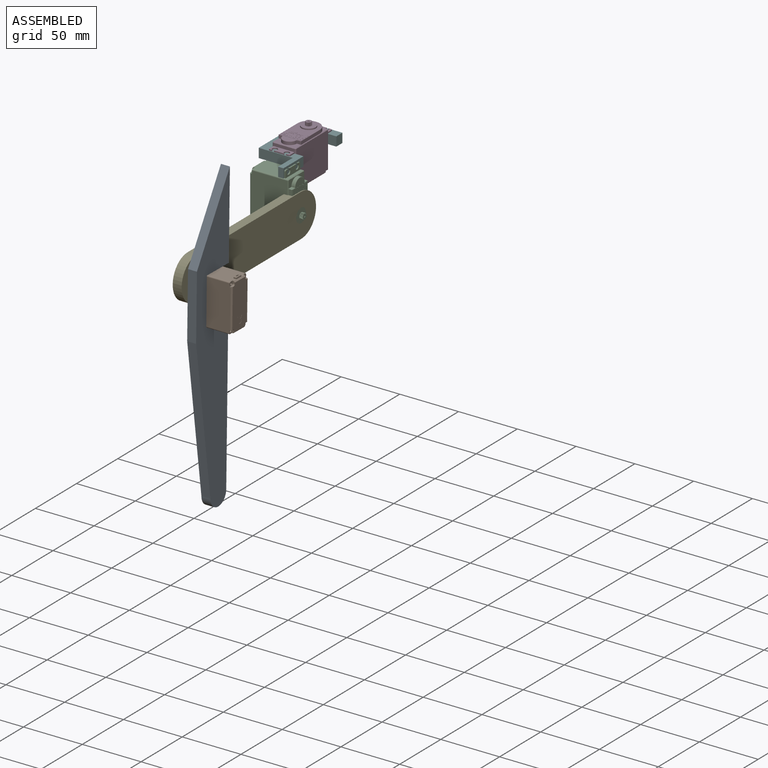
[diagram: assembled view]
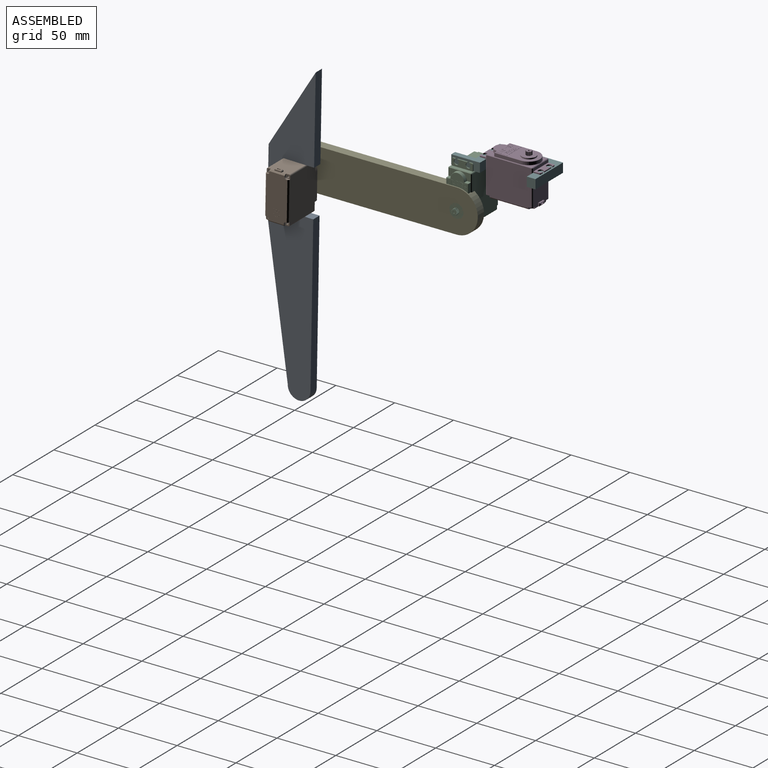
[diagram: assembled view, second angle]
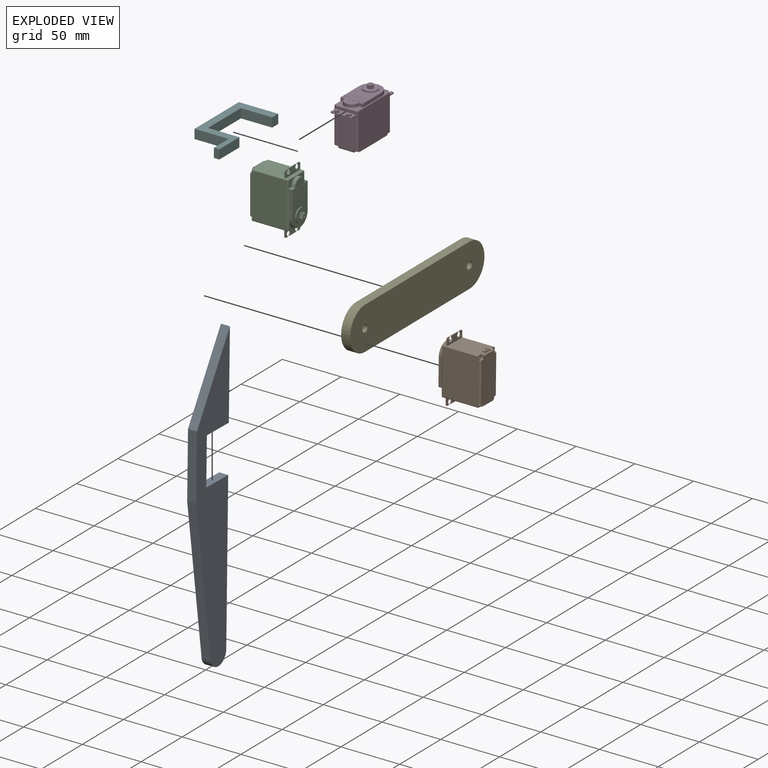
[diagram: exploded view]
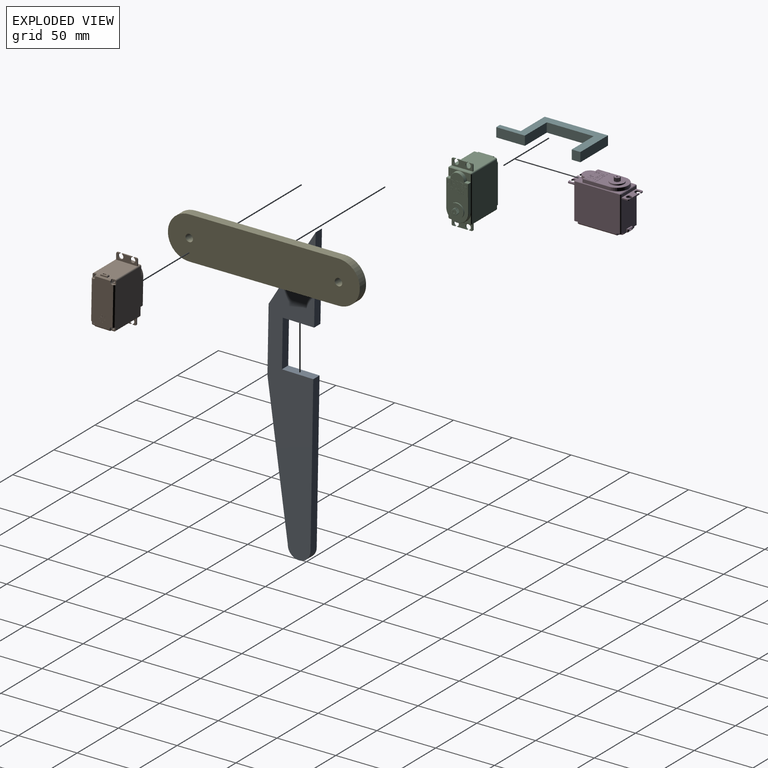
[diagram: exploded view, second angle]
ASSEMBLY  parts=6 mates=11
PART A: 11 faces, bbox 256.3x38.9x7.6 mm
  f0: plane 55.12x7.62mm, normal (0,-1,0), area 420mm2, adj f1,f8,f9,f10
  f1: plane 125.18x19.56mm, normal (0.15,-0.99,0), area 965.5mm2, adj f0,f2,f9,f10
  f2: cylinder r=9.65mm len=19.3mm, axis (0,0,-1), area 231.1mm2, adj f1,f3,f9,f10
  f3: plane 133.1x7.62mm, normal (0,1,0), area 1014.2mm2, adj f2,f4,f9,f10
  f4: plane 26.67x7.62mm, normal (-1,0,0), area 203.2mm2, adj f3,f5,f9,f10
  f5: plane 39.88x7.62mm, normal (0,1,0), area 303.9mm2, adj f4,f6,f9,f10
  f6: plane 26.67x7.62mm, normal (1,0,0), area 203.2mm2, adj f5,f7,f9,f10
  f7: plane 73.66x7.62mm, normal (0,1,0), area 561.3mm2, adj f6,f8,f9,f10
  f8: plane 66.33x38.86mm, normal (-0.51,-0.86,0), area 585.8mm2, adj f0,f7,f9,f10
  f9: plane 256.29x38.86mm, normal (0,0,1), area 6154.4mm2, adj f0,f1,f2,f3,f4,f5,f6,f7
  f10: plane 256.29x38.86mm, normal (0,0,-1), area 6154.4mm2, adj f0,f1,f2,f3,f4,f5,f6,f7
PART B: 353 faces, bbox 21.3x52.1x40.2 mm
  f0: plane 28x18mm, normal (0,1,0), area 484mm2, adj f8,f11,f26,f27,f30,f40,f42,f141
  f1: plane 38x18mm, normal (0,0,-1), area 652.9mm2, adj f23,f24,f25,f26,f27,f28,f29,f31
  f2: plane 18x10mm, normal (0,0,1), area 150.9mm2, adj f155,f156,f157,f158,f159,f160,f161,f162
  f3: plane 38x18.5mm, normal (0,0,1), area 317.1mm2, adj f43,f155,f156,f157,f158,f302,f308,f309
  f4: plane 28x18mm, normal (0,-1,0), area 499mm2, adj f9,f10,f23,f32,f34,f37,f38,f154
  f5: plane 7.31x7.31mm, normal (0,0,1), area 16.3mm2, adj f122,f124,f126,f295
  f6: plane 7.31x7.31mm, normal (0,0,1), area 16.3mm2, adj f126,f127,f128,f291
  f7: plane 12x12mm, normal (0,0,1), area 96.7mm2, adj f43,f44,f45,f46,f47,f48,f49,f50
  f8: cylinder r=1mm len=30.5mm, axis (0,0,-1), area 47.9mm2, adj f0,f14,f15,f42,f128,f137
  f9: cylinder r=1mm len=30.5mm, axis (0,0,-1), area 47.9mm2, adj f4,f15,f16,f38,f125,f151
  f10: cylinder r=1mm len=30.5mm, axis (0,0,-1), area 47.9mm2, adj f4,f13,f16,f34,f121,f150
  f11: cylinder r=1mm len=30.5mm, axis (0,0,-1), area 47.9mm2, adj f0,f13,f14,f30,f124,f138
  f12: plane 19x6.32mm, normal (0,0,1), area 60.4mm2, adj f121,f122,f123,f125,f127,f296,f298,f303
  f13: plane 38x31.5mm, normal (1,0,0), area 1192mm2, adj f10,f11,f24,f29,f30,f33,f34,f122
  f14: plane 18x2.5mm, normal (0,1,0), area 45mm2, adj f8,f11,f126,f140
  f15: plane 38x31.5mm, normal (-1,0,0), area 1192mm2, adj f8,f9,f25,f36,f38,f41,f42,f127
  f16: plane 18x2.5mm, normal (0,-1,0), area 45mm2, adj f9,f10,f123,f153
  f17: cylinder r=9.5mm len=19mm, axis (0,0,-1), area 75.4mm2, adj f18,f22,f290,f291,f292,f294,f295,f300
  f18: plane 22.75x2.65mm, normal (-1,0,0), area 60.2mm2, adj f17,f299,f310,f317
  f19: plane 3.01x2.5mm, normal (0,-1,0), area 7.5mm2, adj f297,f298,f309,f310
  f20: cylinder r=6mm len=11.99mm, axis (0,0,-1), area 45.9mm2, adj f296,f297,f307,f308
  f21: plane 3.01x2.5mm, normal (0,-1,0), area 7.5mm2, adj f306,f307,f315,f316
  f22: plane 22.75x2.65mm, normal (1,0,0), area 60.2mm2, adj f17,f305,f315,f320
  f23: plane 13x1mm, normal (0,-0.71,-0.71), area 18.4mm2, adj f1,f4,f32,f37
  f24: plane 33x1mm, normal (0.71,0,-0.71), area 46.7mm2, adj f1,f13,f29,f33
  f25: plane 33x1mm, normal (-0.71,0,-0.71), area 46.7mm2, adj f1,f15,f36,f41
  f26: plane 13x1mm, normal (0,0.71,-0.71), area 18.4mm2, adj f0,f1,f27,f40
  f27: plane 2x2mm, normal (1,0,0), area 3.5mm2, adj f0,f1,f26,f28,f30
  f28: cylinder r=1.5mm len=2mm, axis (0,0,-1), area 4.7mm2, adj f1,f27,f29,f30
  f29: plane 2x2mm, normal (0,1,0), area 3.5mm2, adj f1,f13,f24,f28,f30
  f30: plane 3.5x3.5mm, normal (0,0,-1), area 8.4mm2, adj f0,f11,f13,f27,f28,f29,f119
  f31: cylinder r=1.5mm len=2mm, axis (0,0,-1), area 4.7mm2, adj f1,f32,f33,f34
  f32: plane 2x2mm, normal (1,0,0), area 3.5mm2, adj f1,f4,f23,f31,f34
  f33: plane 2x2mm, normal (0,-1,0), area 3.5mm2, adj f1,f13,f24,f31,f34
  f34: plane 3.5x3.5mm, normal (0,0,-1), area 8.4mm2, adj f4,f10,f13,f31,f32,f33,f115
  f35: cylinder r=1.5mm len=2mm, axis (0,0,-1), area 4.7mm2, adj f1,f36,f37,f38
  f36: plane 2x2mm, normal (0,-1,0), area 3.5mm2, adj f1,f15,f25,f35,f38
  f37: plane 2x2mm, normal (-1,0,0), area 3.5mm2, adj f1,f4,f23,f35,f38
  f38: plane 3.5x3.5mm, normal (0,0,-1), area 8.4mm2, adj f4,f9,f15,f35,f36,f37,f113
  f39: cylinder r=1.5mm len=2mm, axis (0,0,-1), area 4.7mm2, adj f1,f40,f41,f42
  f40: plane 2x2mm, normal (-1,0,0), area 3.5mm2, adj f0,f1,f26,f39,f42
  f41: plane 2x2mm, normal (0,1,0), area 3.5mm2, adj f1,f15,f25,f39,f42
  f42: plane 3.5x3.5mm, normal (0,0,-1), area 8.4mm2, adj f0,f8,f15,f39,f40,f41,f117
  f43: cylinder r=6mm len=12mm, axis (0,0,-1), area 37.7mm2, adj f3,f7
  f44: cylinder r=2mm len=3mm, axis (0,0,-1), area 0.7mm2, adj f7,f45,f111,f112
  f45: plane 3x0.25mm, normal (0.93,0.36,0), area 0.8mm2, adj f7,f44,f46,f112
  f46: cylinder r=0.25mm len=3mm, axis (0,0,-1), area 2.4mm2, adj f7,f45,f47,f112
  f47: plane 3x0.25mm, normal (-0.93,-0.36,0), area 0.8mm2, adj f7,f46,f48,f112
  f48: cylinder r=2mm len=3mm, axis (0,0,-1), area 0.7mm2, adj f7,f47,f49,f112
  f49: plane 3x0.2mm, normal (0.74,0.67,0), area 0.8mm2, adj f7,f48,f50,f112
  f50: cylinder r=0.25mm len=3mm, axis (0,0,-1), area 2.4mm2, adj f7,f49,f51,f112
  f51: plane 3x0.2mm, normal (-0.74,-0.67,0), area 0.8mm2, adj f7,f50,f52,f112
  f52: cylinder r=2mm len=3mm, axis (0,0,-1), area 0.7mm2, adj f7,f51,f53,f112
  f53: plane 3x0.24mm, normal (0.45,0.9,0), area 0.8mm2, adj f7,f52,f54,f112
  f54: cylinder r=0.25mm len=3mm, axis (0,0,-1), area 2.4mm2, adj f7,f53,f55,f112
  f55: plane 3x0.24mm, normal (-0.45,-0.9,0), area 0.8mm2, adj f7,f54,f56,f112
  f56: cylinder r=2mm len=3mm, axis (0,0,-1), area 0.7mm2, adj f7,f55,f57,f112
  f57: plane 3x0.26mm, normal (0.09,1,0), area 0.8mm2, adj f7,f56,f58,f112
  f58: cylinder r=0.25mm len=3mm, axis (0,0,-1), area 2.4mm2, adj f7,f57,f59,f112
  f59: plane 3x0.26mm, normal (-0.09,-1,0), area 0.8mm2, adj f7,f58,f60,f112
  f60: cylinder r=2mm len=3mm, axis (0,0,-1), area 0.7mm2, adj f7,f59,f61,f112
  f61: plane 3x0.26mm, normal (-0.27,0.96,0), area 0.8mm2, adj f7,f60,f62,f112
  f62: cylinder r=0.25mm len=3mm, axis (0,0,-1), area 2.4mm2, adj f7,f61,f63,f112
  f63: plane 3x0.26mm, normal (0.27,-0.96,0), area 0.8mm2, adj f7,f62,f64,f112
  f64: cylinder r=2mm len=3mm, axis (0,0,-1), area 0.7mm2, adj f7,f63,f65,f112
  f65: plane 3x0.21mm, normal (-0.6,0.8,0), area 0.8mm2, adj f7,f64,f66,f112
  f66: cylinder r=0.25mm len=3mm, axis (0,0,-1), area 2.4mm2, adj f7,f65,f67,f112
  f67: plane 3x0.21mm, normal (0.6,-0.8,0), area 0.8mm2, adj f7,f66,f68,f112
  f68: cylinder r=2mm len=3mm, axis (0,0,-1), area 0.7mm2, adj f7,f67,f69,f112
  f69: plane 3x0.23mm, normal (-0.85,0.53,0), area 0.8mm2, adj f7,f68,f70,f112
  f70: cylinder r=0.25mm len=3mm, axis (0,0,-1), area 2.4mm2, adj f7,f69,f71,f112
  f71: plane 3x0.23mm, normal (0.85,-0.53,0), area 0.8mm2, adj f7,f70,f72,f112
  f72: cylinder r=2mm len=3mm, axis (0,0,-1), area 0.7mm2, adj f7,f71,f73,f112
  f73: plane 3x0.26mm, normal (-0.98,0.18,0), area 0.8mm2, adj f7,f72,f74,f112
  f74: cylinder r=0.25mm len=3mm, axis (0,0,-1), area 2.4mm2, adj f7,f73,f75,f112
  f75: plane 3x0.26mm, normal (0.98,-0.18,0), area 0.8mm2, adj f7,f74,f76,f112
  f76: cylinder r=2mm len=3mm, axis (0,0,-1), area 0.7mm2, adj f7,f75,f77,f112
  f77: plane 3x0.26mm, normal (-0.98,-0.18,0), area 0.8mm2, adj f7,f76,f78,f112
  f78: cylinder r=0.25mm len=3mm, axis (0,0,-1), area 2.4mm2, adj f7,f77,f79,f112
  f79: plane 3x0.26mm, normal (0.98,0.18,0), area 0.8mm2, adj f7,f78,f80,f112
  f80: cylinder r=2mm len=3mm, axis (0,0,-1), area 0.7mm2, adj f7,f79,f81,f112
  f81: plane 3x0.23mm, normal (-0.85,-0.53,0), area 0.8mm2, adj f7,f80,f82,f112
  f82: cylinder r=0.25mm len=3mm, axis (0,0,-1), area 2.4mm2, adj f7,f81,f83,f112
  f83: plane 3x0.23mm, normal (0.85,0.53,0), area 0.8mm2, adj f7,f82,f84,f112
  f84: cylinder r=2mm len=3mm, axis (0,0,-1), area 0.7mm2, adj f7,f83,f85,f112
  f85: plane 3x0.21mm, normal (-0.6,-0.8,0), area 0.8mm2, adj f7,f84,f86,f112
  f86: cylinder r=0.25mm len=3mm, axis (0,0,-1), area 2.4mm2, adj f7,f85,f87,f112
  f87: plane 3x0.21mm, normal (0.6,0.8,0), area 0.8mm2, adj f7,f86,f88,f112
  f88: cylinder r=2mm len=3mm, axis (0,0,-1), area 0.7mm2, adj f7,f87,f89,f112
  f89: plane 3x0.26mm, normal (-0.27,-0.96,0), area 0.8mm2, adj f7,f88,f90,f112
  f90: cylinder r=0.25mm len=3mm, axis (0,0,-1), area 2.4mm2, adj f7,f89,f91,f112
  f91: plane 3x0.26mm, normal (0.27,0.96,0), area 0.8mm2, adj f7,f90,f92,f112
  f92: cylinder r=2mm len=3mm, axis (0,0,-1), area 0.7mm2, adj f7,f91,f93,f112
  f93: plane 3x0.26mm, normal (0.09,-1,0), area 0.8mm2, adj f7,f92,f94,f112
  f94: cylinder r=0.25mm len=3mm, axis (0,0,-1), area 2.4mm2, adj f7,f93,f95,f112
  f95: plane 3x0.26mm, normal (-0.09,1,0), area 0.8mm2, adj f7,f94,f96,f112
  f96: cylinder r=2mm len=3mm, axis (0,0,-1), area 0.7mm2, adj f7,f95,f97,f112
  f97: plane 3x0.24mm, normal (0.45,-0.9,0), area 0.8mm2, adj f7,f96,f98,f112
  f98: cylinder r=0.25mm len=3mm, axis (0,0,-1), area 2.4mm2, adj f7,f97,f99,f112
  f99: plane 3x0.24mm, normal (-0.45,0.9,0), area 0.8mm2, adj f7,f98,f100,f112
  f100: cylinder r=2mm len=3mm, axis (0,0,-1), area 0.7mm2, adj f7,f99,f101,f112
  f101: plane 3x0.2mm, normal (0.74,-0.67,0), area 0.8mm2, adj f7,f100,f102,f112
  f102: cylinder r=0.25mm len=3mm, axis (0,0,-1), area 2.4mm2, adj f7,f101,f103,f112
  f103: plane 3x0.2mm, normal (-0.74,0.67,0), area 0.8mm2, adj f7,f102,f104,f112
  f104: cylinder r=2mm len=3mm, axis (0,0,-1), area 0.7mm2, adj f7,f103,f105,f112
  f105: plane 3x0.25mm, normal (0.93,-0.36,0), area 0.8mm2, adj f7,f104,f106,f112
  f106: cylinder r=0.25mm len=3mm, axis (0,0,-1), area 2.4mm2, adj f7,f105,f107,f112
  f107: plane 3x0.25mm, normal (-0.93,0.36,0), area 0.8mm2, adj f7,f106,f108,f112
  f108: cylinder r=2mm len=3mm, axis (0,0,-1), area 0.7mm2, adj f7,f107,f109,f112
  f109: plane 3x0.27mm, normal (1,0,0), area 0.8mm2, adj f7,f108,f110,f112
  f110: cylinder r=0.25mm len=3mm, axis (0,0,-1), area 2.4mm2, adj f7,f109,f111,f112
  f111: plane 3x0.27mm, normal (-1,0,0), area 0.8mm2, adj f7,f44,f110,f112
  f112: plane 4.98x4.96mm, normal (0,0,1), area 14.6mm2, adj f44,f45,f46,f47,f48,f49,f50,f51
  f113: cylinder r=1mm len=5mm, axis (0,0,-1), area 31.4mm2, adj f38,f114
  f114: plane 2x2mm, normal (0,0,-1), area 3.1mm2, adj f113
  f115: cylinder r=1mm len=5mm, axis (0,0,-1), area 31.4mm2, adj f34,f116
  f116: plane 2x2mm, normal (0,0,-1), area 3.1mm2, adj f115
  f117: cylinder r=1mm len=5mm, axis (0,0,-1), area 31.4mm2, adj f42,f118
  f118: plane 2x2mm, normal (0,0,-1), area 3.1mm2, adj f117
  f119: cylinder r=1mm len=5mm, axis (0,0,-1), area 31.4mm2, adj f30,f120
  f120: plane 2x2mm, normal (0,0,-1), area 3.1mm2, adj f119
  f121: cone r=0.5mm half-angle=45deg, axis (0,0,-1), area 0.8mm2, adj f10,f12,f122,f123
  f122: plane 38.08x0.65mm, normal (0.71,0,0.71), area 24.4mm2, adj f5,f12,f13,f121,f124,f295,f300,f305
  f123: plane 18x0.5mm, normal (0,-0.71,0.71), area 12.7mm2, adj f12,f16,f121,f125
  f124: cone r=0.5mm half-angle=45deg, axis (0,0,-1), area 0.8mm2, adj f5,f11,f122,f126
  f125: cone r=0.5mm half-angle=45deg, axis (0,0,-1), area 0.8mm2, adj f9,f12,f123,f127
  f126: plane 18.1x0.6mm, normal (0,0.71,0.71), area 12.7mm2, adj f5,f6,f14,f124,f128,f290,f292
  f127: plane 38.08x0.65mm, normal (-0.71,0,0.71), area 24.4mm2, adj f6,f12,f15,f125,f128,f291,f294,f299
  f128: cone r=0.5mm half-angle=45deg, axis (0,0,-1), area 0.8mm2, adj f6,f8,f126,f127
  f129: plane 1x0.31mm, normal (-1,0,0), area 0.3mm2, adj f130,f139,f140,f141
  f130: cylinder r=2.19mm len=4.38mm, axis (0,0,-1), area 12.2mm2, adj f129,f131,f140,f141
  f131: plane 1x0.31mm, normal (1,0,0), area 0.3mm2, adj f130,f132,f140,f141
  f132: plane 8.67x1mm, normal (0,1,0), area 8.7mm2, adj f131,f133,f140,f141
  f133: plane 1x0.31mm, normal (-1,0,0), area 0.3mm2, adj f132,f134,f140,f141
  f134: cylinder r=2.19mm len=4.38mm, axis (0,0,-1), area 12.2mm2, adj f133,f135,f140,f141
  f135: plane 1x0.31mm, normal (1,0,0), area 0.3mm2, adj f134,f136,f140,f141
  f136: plane 2.17x1mm, normal (0,1,0), area 2.2mm2, adj f135,f140,f141,f337
  f137: plane 5x1mm, normal (-1,0,0), area 5mm2, adj f8,f140,f141,f337
  f138: plane 5x1mm, normal (1,0,0), area 5mm2, adj f11,f140,f141,f338
  f139: plane 2.17x1mm, normal (0,1,0), area 2.2mm2, adj f129,f140,f141,f338
  f140: plane 18x6mm, normal (0,0,1), area 76.8mm2, adj f14,f129,f130,f131,f132,f133,f134,f135
  f141: plane 18x6mm, normal (0,0,-1), area 76.8mm2, adj f0,f129,f130,f131,f132,f133,f134,f135
  f142: plane 1x0.31mm, normal (1,0,0), area 0.3mm2, adj f143,f152,f153,f154
  f143: cylinder r=2.19mm len=4.38mm, axis (0,0,-1), area 12.2mm2, adj f142,f144,f153,f154
  f144: plane 1x0.31mm, normal (-1,0,0), area 0.3mm2, adj f143,f145,f153,f154
  f145: plane 8.67x1mm, normal (0,-1,0), area 8.7mm2, adj f144,f146,f153,f154
  f146: plane 1x0.31mm, normal (1,0,0), area 0.3mm2, adj f145,f147,f153,f154
  f147: cylinder r=2.19mm len=4.38mm, axis (0,0,-1), area 12.2mm2, adj f146,f148,f153,f154
  f148: plane 1x0.31mm, normal (-1,0,0), area 0.3mm2, adj f147,f149,f153,f154
  f149: plane 2.17x1mm, normal (0,-1,0), area 2.2mm2, adj f148,f153,f154,f336
  f150: plane 5x1mm, normal (1,0,0), area 5mm2, adj f10,f153,f154,f336
  f151: plane 5x1mm, normal (-1,0,0), area 5mm2, adj f9,f153,f154,f335
  f152: plane 2.17x1mm, normal (0,-1,0), area 2.2mm2, adj f142,f153,f154,f335
  f153: plane 18x6mm, normal (0,0,1), area 76.8mm2, adj f16,f142,f143,f144,f145,f146,f147,f148
  f154: plane 18x6mm, normal (0,0,-1), area 76.8mm2, adj f4,f142,f143,f144,f145,f146,f147,f148
  f155: plane 10x0.1mm, normal (-1,0,0), area 1mm2, adj f2,f3,f156,f158
  f156: plane 18x0.1mm, normal (0,-1,0), area 1.8mm2, adj f2,f3,f155,f157
  f157: plane 10x0.1mm, normal (1,0,0), area 1mm2, adj f2,f3,f156,f158
  f158: plane 18x0.1mm, normal (0,1,0), area 1.8mm2, adj f2,f3,f155,f157
  f159: plane 1.35x0.19mm, normal (0.99,-0.14,0), area 0.1mm2, adj f2,f160,f170,f171
  f160: plane 1.16x0.1mm, normal (0,1,0), area 0.1mm2, adj f2,f159,f161,f171
  f161: plane 1.35x0.19mm, normal (-0.99,0.14,0), area 0.1mm2, adj f2,f160,f162,f171
  f162: plane 0.63x0.1mm, normal (0,1,0), area 0.1mm2, adj f2,f161,f163,f171
  f163: plane 3.5x0.49mm, normal (0.99,-0.14,0), area 0.4mm2, adj f2,f162,f164,f171
  f164: plane 0.63x0.1mm, normal (0,-1,0), area 0.1mm2, adj f2,f163,f165,f171
  f165: plane 1.57x0.22mm, normal (-0.99,0.14,0), area 0.2mm2, adj f2,f164,f166,f171
  f166: plane 1.16x0.1mm, normal (0,-1,0), area 0.1mm2, adj f2,f165,f167,f171
  f167: plane 1.57x0.22mm, normal (0.99,-0.14,0), area 0.2mm2, adj f2,f166,f168,f171
  f168: plane 0.63x0.1mm, normal (0,-1,0), area 0.1mm2, adj f2,f167,f169,f171
  f169: plane 3.5x0.49mm, normal (-0.99,0.14,0), area 0.4mm2, adj f2,f168,f170,f171
  f170: plane 0.63x0.1mm, normal (0,1,0), area 0.1mm2, adj f2,f159,f169,f171
  f171: plane 3.5x2.92mm, normal (0,0,1), area 5.1mm2, adj f159,f160,f161,f162,f163,f164,f165,f166
  f172: cylinder r=0.41mm len=0.4mm, axis (0,0,-1), area 0.1mm2, adj f2,f173,f175,f176
  f173: cylinder r=0.4mm len=0.4mm, axis (0,0,-1), area 0.1mm2, adj f2,f172,f174,f176
  f174: cylinder r=0.41mm len=0.4mm, axis (0,0,-1), area 0.1mm2, adj f2,f173,f175,f176
  f175: extruded ~0.4x0.4mm, area 0.1mm2, adj f2,f172,f174,f176
  f176: plane 0.81x0.81mm, normal (0,0,1), area 0.5mm2, adj f172,f173,f174,f175
  f177: plane 2.56x0.36mm, normal (0.99,-0.14,0), area 0.3mm2, adj f2,f178,f180,f181
  f178: plane 0.63x0.1mm, normal (0,-1,0), area 0.1mm2, adj f2,f177,f179,f181
  f179: plane 2.56x0.36mm, normal (-0.99,0.14,0), area 0.3mm2, adj f2,f178,f180,f181
  f180: plane 0.63x0.1mm, normal (0,1,0), area 0.1mm2, adj f2,f177,f179,f181
  f181: plane 2.56x1mm, normal (0,0,1), area 1.6mm2, adj f177,f178,f179,f180
  f182: plane 1.03x0.14mm, normal (0.99,-0.14,0), area 0.1mm2, adj f2,f183,f193,f194
  f183: plane 0.4x0.1mm, normal (0,1,0), area 0mm2, adj f2,f182,f184,f194
  f184: plane 0.54x0.1mm, normal (0.99,-0.14,0), area 0.1mm2, adj f2,f183,f185,f194
  f185: plane 0.4x0.1mm, normal (0,-1,0), area 0mm2, adj f2,f184,f186,f194
  f186: plane 2.02x0.28mm, normal (0.99,-0.14,0), area 0.2mm2, adj f2,f185,f187,f194
  f187: plane 0.63x0.1mm, normal (0,-1,0), area 0.1mm2, adj f2,f186,f188,f194
  f188: plane 2.02x0.28mm, normal (-0.99,0.14,0), area 0.2mm2, adj f2,f187,f189,f194
  f189: plane 0.31x0.1mm, normal (0,-1,0), area 0mm2, adj f2,f188,f190,f194
  f190: plane 0.54x0.1mm, normal (-0.99,0.13,0), area 0.1mm2, adj f2,f189,f191,f194
  f191: plane 0.31x0.1mm, normal (0,1,0), area 0mm2, adj f2,f190,f192,f194
  f192: plane 1.03x0.14mm, normal (-0.99,0.14,0), area 0.1mm2, adj f2,f191,f193,f194
  f193: plane 0.63x0.1mm, normal (0,1,0), area 0.1mm2, adj f2,f182,f192,f194
  f194: plane 3.59x1.42mm, normal (0,0,1), area 2.7mm2, adj f182,f183,f184,f185,f186,f187,f188,f189
  f195: plane 2.69x2.65mm, normal (0,0,1), area 4.3mm2, adj f196,f197,f198,f199,f200,f201,f202,f203
  f196: extruded ~1.17x0.52mm, area 0.1mm2, adj f2,f195,f197,f204
  f197: extruded ~1.26x1.19mm, area 0.2mm2, adj f2,f195,f196,f198
  f198: extruded ~1.46x1.44mm, area 0.2mm2, adj f2,f195,f197,f199
  f199: extruded ~1.27x1.25mm, area 0.2mm2, adj f2,f195,f198,f200
  f200: cylinder r=1.6mm len=0.26mm, axis (0,0,-1), area 0mm2, adj f2,f195,f199,f201
  f201: plane 2.04x0.1mm, normal (0,-1,0), area 0.2mm2, adj f2,f195,f200,f202
  f202: extruded ~0.63x0.54mm, area 0.1mm2, adj f2,f195,f201,f203
  f203: cylinder r=0.97mm len=0.62mm, axis (0,0,1), area 0.1mm2, adj f2,f195,f202,f204
  f204: plane 0.55x0.28mm, normal (0.46,0.89,0), area 0.1mm2, adj f2,f195,f196,f203
  f205: extruded ~0.68x0.49mm, area 0.1mm2, adj f195,f206,f207,f208
  f206: plane 1.3x0.1mm, normal (0,1,0), area 0.1mm2, adj f195,f205,f207,f208
  f207: extruded ~0.62x0.49mm, area 0.1mm2, adj f195,f205,f206,f208
  f208: plane 1.3x0.49mm, normal (0,0,1), area 0.5mm2, adj f205,f206,f207
  f209: extruded ~0.64x0.28mm, area 0.1mm2, adj f2,f210,f218,f219
  f210: extruded ~0.93x0.84mm, area 0.1mm2, adj f2,f209,f211,f219
  f211: extruded ~0.73x0.64mm, area 0.1mm2, adj f2,f210,f212,f219
  f212: extruded ~0.73x0.3mm, area 0.1mm2, adj f2,f211,f213,f219
  f213: plane 0.52x0.35mm, normal (0.56,0.83,0), area 0.1mm2, adj f2,f212,f214,f219
  f214: extruded ~1.27x0.53mm, area 0.1mm2, adj f2,f213,f215,f219
  f215: extruded ~1.34x1.18mm, area 0.2mm2, adj f2,f214,f216,f219
  f216: extruded ~1.59x1.47mm, area 0.2mm2, adj f2,f215,f217,f219
  f217: extruded ~1.17x0.58mm, area 0.1mm2, adj f2,f216,f218,f219
  f218: plane 0.56x0.28mm, normal (0.45,-0.89,0), area 0.1mm2, adj f2,f209,f217,f219
  f219: plane 2.76x2.65mm, normal (0,0,1), area 3.4mm2, adj f209,f210,f211,f212,f213,f214,f215,f216
  f220: plane 1.44x0.1mm, normal (1,0,0), area 0.1mm2, adj f2,f221,f231,f232
  f221: plane 1.8x0.1mm, normal (0,1,0), area 0.2mm2, adj f2,f220,f222,f232
  f222: plane 1.44x0.1mm, normal (-1,0,0), area 0.1mm2, adj f2,f221,f223,f232
  f223: plane 0.31x0.1mm, normal (0,1,0), area 0mm2, adj f2,f222,f224,f232
  f224: plane 3.5x0.1mm, normal (1,0,0), area 0.4mm2, adj f2,f223,f225,f232
  f225: plane 0.31x0.1mm, normal (0,-1,0), area 0mm2, adj f2,f224,f226,f232
  f226: plane 1.71x0.1mm, normal (-1,0,0), area 0.2mm2, adj f2,f225,f227,f232
  f227: plane 1.8x0.1mm, normal (0,-1,0), area 0.2mm2, adj f2,f226,f228,f232
  f228: plane 1.71x0.1mm, normal (1,0,0), area 0.2mm2, adj f2,f227,f229,f232
  f229: plane 0.31x0.1mm, normal (0,-1,0), area 0mm2, adj f2,f228,f230,f232
  f230: plane 3.5x0.1mm, normal (-1,0,0), area 0.4mm2, adj f2,f229,f231,f232
  f231: plane 0.31x0.1mm, normal (0,1,0), area 0mm2, adj f2,f220,f230,f232
  f232: plane 3.5x2.42mm, normal (0,0,1), area 2.8mm2, adj f220,f221,f222,f223,f224,f225,f226,f227
  f233: extruded ~0.77x0.58mm, area 0.1mm2, adj f2,f234,f249,f250
  f234: extruded ~0.69x0.59mm, area 0.1mm2, adj f2,f233,f235,f250
  f235: extruded ~0.34x0.13mm, area 0mm2, adj f2,f234,f236,f250
  f236: extruded ~0.63x0.56mm, area 0.1mm2, adj f2,f235,f237,f250
  f237: extruded ~0.57x0.48mm, area 0.1mm2, adj f2,f236,f238,f250
  f238: extruded ~0.53x0.2mm, area 0.1mm2, adj f2,f237,f239,f250
  f239: extruded ~0.86x0.82mm, area 0.1mm2, adj f2,f238,f240,f250
  f240: extruded ~0.93x0.59mm, area 0.1mm2, adj f2,f239,f241,f250
  f241: plane 0.28x0.22mm, normal (0.6,-0.8,0), area 0mm2, adj f2,f240,f242,f250
  f242: extruded ~0.68x0.45mm, area 0.1mm2, adj f2,f241,f243,f250
  f243: extruded ~0.51x0.44mm, area 0.1mm2, adj f2,f242,f244,f250
  f244: extruded ~0.45x0.23mm, area 0.1mm2, adj f2,f243,f245,f250
  f245: extruded ~0.47x0.35mm, area 0.1mm2, adj f2,f244,f246,f250
  f246: extruded ~1.13x0.82mm, area 0.1mm2, adj f2,f245,f247,f250
  f247: extruded ~1x0.95mm, area 0.2mm2, adj f2,f246,f248,f250
  f248: extruded ~1.06x0.77mm, area 0.1mm2, adj f2,f247,f249,f250
  f249: plane 0.3x0.18mm, normal (-0.51,0.86,0), area 0mm2, adj f2,f233,f248,f250
  f250: plane 3.68x2.06mm, normal (0,0,1), area 2.4mm2, adj f233,f234,f235,f236,f237,f238,f239,f240
  f251: plane 0.36x0.1mm, normal (1,0,0), area 0mm2, adj f2,f252,f254,f255
  f252: plane 1.35x0.1mm, normal (0,-1,0), area 0.1mm2, adj f2,f251,f253,f255
  f253: plane 0.36x0.1mm, normal (-1,0,0), area 0mm2, adj f2,f252,f254,f255
  f254: plane 1.35x0.1mm, normal (0,1,0), area 0.1mm2, adj f2,f251,f253,f255
  f255: plane 1.35x0.36mm, normal (0,0,1), area 0.5mm2, adj f251,f252,f253,f254
  f256: extruded ~1.04x0.9mm, area 0.1mm2, adj f2,f257,f272,f273
  f257: extruded ~1.02x0.91mm, area 0.2mm2, adj f2,f256,f258,f273
  f258: extruded ~0.72x0.41mm, area 0.1mm2, adj f2,f257,f259,f273
  f259: cylinder r=0.96mm len=0.38mm, axis (0,0,-1), area 0mm2, adj f2,f258,f260,f273
  f260: cylinder r=1.01mm len=0.62mm, axis (0,0,-1), area 0.1mm2, adj f2,f259,f261,f273
  f261: extruded ~1.21x1.13mm, area 0.2mm2, adj f2,f260,f262,f273
  f262: extruded ~1.17x1.03mm, area 0.2mm2, adj f2,f261,f263,f273
  f263: plane 0.31x0.1mm, normal (0,1,0), area 0mm2, adj f2,f262,f264,f273
  f264: extruded ~0.48x0.27mm, area 0.1mm2, adj f2,f263,f265,f273
  f265: extruded ~0.58x0.19mm, area 0.1mm2, adj f2,f264,f266,f273
  f266: extruded ~0.89x0.74mm, area 0.1mm2, adj f2,f265,f267,f273
  f267: extruded ~1.08x0.74mm, area 0.1mm2, adj f2,f266,f268,f273
  f268: plane 0.36x0.1mm, normal (-1,0,0), area 0mm2, adj f2,f267,f269,f273
  f269: extruded ~0.9x0.57mm, area 0.1mm2, adj f2,f268,f270,f273
  f270: extruded ~0.7x0.55mm, area 0.1mm2, adj f2,f269,f271,f273
  f271: extruded ~0.73x0.54mm, area 0.1mm2, adj f2,f270,f272,f273
  f272: plane 0.31x0.1mm, normal (0,-1,0), area 0mm2, adj f2,f256,f271,f273
  f273: plane 3.68x2.38mm, normal (0,0,1), area 2.8mm2, adj f256,f257,f258,f259,f260,f261,f262,f263
  f274: plane 3.5x0.1mm, normal (1,0,0), area 0.4mm2, adj f2,f275,f279,f280
  f275: plane 0.31x0.1mm, normal (0,-1,0), area 0mm2, adj f2,f274,f276,f280
  f276: plane 3.14x0.1mm, normal (-1,0,0), area 0.3mm2, adj f2,f275,f277,f280
  f277: plane 0.54x0.1mm, normal (0,-1,0), area 0.1mm2, adj f2,f276,f278,f280
  f278: plane 0.36x0.21mm, normal (-0.87,0.5,0), area 0mm2, adj f2,f277,f279,f280
  f279: plane 0.65x0.1mm, normal (0,1,0), area 0.1mm2, adj f2,f274,f278,f280
  f280: plane 3.5x0.85mm, normal (0,0,1), area 1.3mm2, adj f274,f275,f276,f277,f278,f279
  f281: plane 3.5x0.1mm, normal (1,0,0), area 0.4mm2, adj f2,f282,f286,f287
  f282: plane 0.31x0.1mm, normal (0,-1,0), area 0mm2, adj f2,f281,f283,f287
  f283: plane 3.14x0.1mm, normal (-1,0,0), area 0.3mm2, adj f2,f282,f284,f287
  f284: plane 0.54x0.1mm, normal (0,-1,0), area 0.1mm2, adj f2,f283,f285,f287
  f285: plane 0.36x0.21mm, normal (-0.87,0.5,0), area 0mm2, adj f2,f284,f286,f287
  f286: plane 0.65x0.1mm, normal (0,1,0), area 0.1mm2, adj f2,f281,f285,f287
  f287: plane 3.5x0.85mm, normal (0,0,1), area 1.3mm2, adj f281,f282,f283,f284,f285,f286
  f288: cylinder r=0.75mm len=1.5mm, axis (0,0,1), area 2.4mm2, adj f112,f289
  f289: plane 1.5x1.5mm, normal (0,0,1), area 1.8mm2, adj f288
  f290: bspline ~2.3x0.28mm, area 0.3mm2, adj f17,f126,f291
  f291: torus R=9.75mm, axis (0,0,1), area 4.4mm2, adj f6,f17,f127,f290,f294
  f292: bspline ~2.3x0.28mm, area 0.3mm2, adj f17,f126,f295
  f293: sphere r=0.25mm, area 0.1mm2, adj f296,f297,f298
  f294: bspline ~2.93x0.62mm, area 0.3mm2, adj f17,f127,f291,f299
  f295: torus R=9.75mm, axis (0,0,1), area 4.4mm2, adj f5,f17,f122,f292,f300
  f296: torus R=6.25mm, axis (0,0,1), area 7.3mm2, adj f12,f20,f293,f301
  f297: cylinder r=0.25mm len=2.5mm, axis (0,0,-1), area 1mm2, adj f19,f20,f293,f302
  f298: cylinder r=0.25mm len=3.01mm, axis (1,0,0), area 1.2mm2, adj f12,f19,f293,f303
  f299: cylinder r=0.25mm len=22.75mm, axis (0,-1,0), area 4.5mm2, adj f18,f127,f294,f304
  f300: bspline ~2.93x0.62mm, area 0.3mm2, adj f17,f122,f295,f305
  f301: sphere r=0.25mm, area 0.1mm2, adj f296,f306,f307
  f302: torus R=0.5mm, axis (0,0,1), area 0.2mm2, adj f3,f297,f308,f309
  f303: torus R=0.5mm, axis (0,0,1), area 0.1mm2, adj f12,f127,f298,f304,f310
  f304: bspline ~0.41x0.39mm, area 0.1mm2, adj f127,f299,f303,f310
  f305: cylinder r=0.25mm len=22.75mm, axis (0,1,0), area 4.5mm2, adj f22,f122,f300,f311
  f306: cylinder r=0.25mm len=3.01mm, axis (1,0,0), area 1.2mm2, adj f12,f21,f301,f312
  f307: cylinder r=0.25mm len=2.5mm, axis (0,0,-1), area 1mm2, adj f20,f21,f301,f313
  f308: torus R=5.75mm, axis (0,0,1), area 7.1mm2, adj f3,f20,f302,f313
  f309: cylinder r=0.25mm len=3.01mm, axis (-1,0,0), area 1.2mm2, adj f3,f19,f302,f314
  f310: cylinder r=0.25mm len=2.65mm, axis (0,0,-1), area 1mm2, adj f18,f19,f303,f304,f314
  f311: bspline ~0.41x0.39mm, area 0.1mm2, adj f122,f305,f312,f315
  f312: torus R=0.5mm, axis (0,0,1), area 0.1mm2, adj f12,f122,f306,f311,f315
  f313: torus R=0.5mm, axis (0,0,1), area 0.2mm2, adj f3,f307,f308,f316
  f314: sphere r=0.25mm, area 0.1mm2, adj f309,f310,f317
  f315: cylinder r=0.25mm len=2.65mm, axis (0,0,-1), area 1mm2, adj f21,f22,f311,f312,f318
  f316: cylinder r=0.25mm len=3.01mm, axis (-1,0,0), area 1.2mm2, adj f3,f21,f313,f318
  f317: cylinder r=0.25mm len=22.75mm, axis (0,1,0), area 8.9mm2, adj f3,f18,f314,f319
  f318: sphere r=0.25mm, area 0.1mm2, adj f315,f316,f320
  f319: torus R=9.25mm, axis (0,0,1), area 11.6mm2, adj f3,f17,f317,f320
  f320: cylinder r=0.25mm len=22.75mm, axis (0,-1,0), area 8.9mm2, adj f3,f22,f318,f319
  f321: cylinder r=2mm len=4mm, axis (0,0,1), area 0.6mm2, adj f1,f322,f324,f325
  f322: plane 0.5x0.1mm, normal (0,1,0), area 0.1mm2, adj f1,f321,f323,f325
  f323: cylinder r=2.5mm len=5mm, axis (0,0,1), area 0.8mm2, adj f1,f322,f324,f325
  f324: plane 0.5x0.1mm, normal (0,1,0), area 0.1mm2, adj f1,f321,f323,f325
  f325: plane 5x2.5mm, normal (0,0,-1), area 3.5mm2, adj f321,f322,f323,f324
  f326: cylinder r=2mm len=1.98mm, axis (0,0,1), area 0.3mm2, adj f1,f327,f333,f334
  f327: plane 0.5x0.1mm, normal (0,1,0), area 0.1mm2, adj f1,f326,f328,f334
  f328: cylinder r=2.5mm len=5mm, axis (0,0,1), area 0.8mm2, adj f1,f327,f329,f334
  f329: plane 0.5x0.1mm, normal (0,1,0), area 0.1mm2, adj f1,f328,f330,f334
  f330: cylinder r=2mm len=1.98mm, axis (0,0,1), area 0.3mm2, adj f1,f329,f331,f334
  f331: plane 1.98x0.1mm, normal (-1,0,0), area 0.2mm2, adj f1,f330,f332,f334
  f332: plane 0.5x0.1mm, normal (0,1,0), area 0.1mm2, adj f1,f331,f333,f334
  f333: plane 1.98x0.1mm, normal (1,0,0), area 0.2mm2, adj f1,f326,f332,f334
  f334: plane 5x2.5mm, normal (0,0,-1), area 4.5mm2, adj f326,f327,f328,f329,f330,f331,f332,f333
  f335: cylinder r=1mm len=1mm, axis (0,0,1), area 1.6mm2, adj f151,f152,f153,f154
  f336: cylinder r=1mm len=1mm, axis (0,0,-1), area 1.6mm2, adj f149,f150,f153,f154
  f337: cylinder r=1mm len=1mm, axis (0,0,1), area 1.6mm2, adj f136,f137,f140,f141
  f338: cylinder r=1mm len=1mm, axis (0,0,-1), area 1.6mm2, adj f138,f139,f140,f141
  f339: plane 2.5x1mm, normal (-1,0,0), area 2.5mm2, adj f0,f340,f342,f346
  f340: plane 6x1mm, normal (0,0,1), area 6mm2, adj f0,f339,f341,f344
  f341: plane 2.5x1mm, normal (1,0,0), area 2.5mm2, adj f0,f340,f342,f345
  f342: plane 6x1mm, normal (0,0,-1), area 6mm2, adj f0,f339,f341,f347
  f343: plane 5x1.5mm, normal (0,1,0), area 4.7mm2, adj f344,f345,f346,f347,f348,f349,f350,f351
  f344: plane 6x0.5mm, normal (0,0.71,0.71), area 3.9mm2, adj f340,f343,f345,f346
  f345: plane 2.5x0.5mm, normal (0.71,0.71,0), area 1.4mm2, adj f341,f343,f344,f347
  f346: plane 2.5x0.5mm, normal (-0.71,0.71,0), area 1.4mm2, adj f339,f343,f344,f347
  f347: plane 6x0.5mm, normal (0,0.71,-0.71), area 3.9mm2, adj f342,f343,f345,f346
  f348: cylinder r=0.5mm len=1mm, axis (0,1,0), area 1.6mm2, adj f343,f349,f351,f352
  f349: plane 2x1mm, normal (0,0,-1), area 2mm2, adj f343,f348,f350,f352
  f350: cylinder r=0.5mm len=1mm, axis (0,1,0), area 1.6mm2, adj f343,f349,f351,f352
  f351: plane 2x1mm, normal (0,0,1), area 2mm2, adj f343,f348,f350,f352
  f352: plane 3x1mm, normal (0,1,0), area 2.8mm2, adj f348,f349,f350,f351
PART C: same geometry as B
PART D: same geometry as B
PART E: 8 faces, bbox 163.3x36.3x7.6 mm
  f0: plane 127x7.62mm, normal (0,1,0), area 967.7mm2, adj f1,f5,f6,f7
  f1: cylinder r=18.16mm len=36.32mm, axis (0,0,-1), area 434.8mm2, adj f0,f2,f6,f7
  f2: plane 127x7.62mm, normal (0,-1,0), area 967.7mm2, adj f1,f5,f6,f7
  f3: cylinder r=3.17mm len=7.62mm, axis (0,0,-1), area 152mm2, adj f6,f7
  f4: cylinder r=3.17mm len=7.62mm, axis (0,0,-1), area 152mm2, adj f6,f7
  f5: cylinder r=18.16mm len=36.32mm, axis (0,0,-1), area 434.8mm2, adj f0,f2,f6,f7
  f6: plane 163.32x36.32mm, normal (0,0,1), area 5585.7mm2, adj f0,f1,f2,f3,f4,f5
  f7: plane 163.32x36.32mm, normal (0,0,-1), area 5585.7mm2, adj f0,f1,f2,f3,f4,f5
PART F: 12 faces, bbox 71.6x33.5x7.9 mm
  f0: plane 24.38x7.87mm, normal (0,1,0), area 192mm2, adj f1,f9,f10,f11
  f1: plane 7.87x4.57mm, normal (-1,0,0), area 36mm2, adj f0,f2,f10,f11
  f2: plane 17.78x7.87mm, normal (0,-1,0), area 140mm2, adj f1,f3,f10,f11
  f3: plane 28.96x7.87mm, normal (-1,0,0), area 228mm2, adj f2,f4,f10,f11
  f4: plane 53.85x7.87mm, normal (0,-1,0), area 424mm2, adj f3,f5,f10,f11
  f5: plane 33.53x7.87mm, normal (1,0,0), area 264mm2, adj f4,f6,f10,f11
  f6: plane 7.87x7.37mm, normal (0,1,0), area 58mm2, adj f5,f7,f10,f11
  f7: plane 26.67x7.87mm, normal (-1,0,0), area 210mm2, adj f6,f8,f10,f11
  f8: plane 39.88x7.87mm, normal (0,1,0), area 314mm2, adj f7,f9,f10,f11
  f9: plane 26.67x7.87mm, normal (1,0,0), area 210mm2, adj f0,f8,f10,f11
  f10: plane 71.63x33.53mm, normal (0,0,1), area 823.2mm2, adj f0,f1,f2,f3,f4,f5,f6,f7
  f11: plane 71.63x33.53mm, normal (0,0,-1), area 823.2mm2, adj f0,f1,f2,f3,f4,f5,f6,f7
PLACE A rot(axis=(-0.01,1,-0.01),90deg) t=(52.49,-288.73,155.8)mm
PLACE B rot(axis=(0.57,-0.58,-0.57),119.4deg) t=(81.49,-303.4,183.86)mm
PLACE C rot(axis=(-0.58,0.58,-0.58),120deg) t=(7.49,-176.21,203.86)mm
PLACE D t=(19.82,-141.83,202.73)mm fixed
PLACE E rot(axis=(0.58,0.58,0.58),120deg) t=(36.87,-258.79,206.92)mm
PLACE F rot(axis=(-0.71,-0.71,0),180deg) t=(36.49,-161.83,231.73)mm
MATE planar D.f15 <-> F.f8  axis (-1,0,0) through (9.82,-141.83,219.55)mm
MATE planar C.f4 <-> F.f10  axis (0,0,1) through (22.62,-176.21,223.86)mm
MATE planar F.f11 <-> D.f154  axis (0,0,1) through (2.96,-141.51,231.73)mm
MATE planar F.f0 <-> C.f154  axis (1,0,0) through (36.49,-174.02,227.79)mm
MATE planar B.f0 <-> A.f6  axis (0,0.02,1) through (65.96,-303.03,203.86)mm
MATE planar F.f9 <-> D.f4  axis (0,1,0) through (23.15,-161.83,227.79)mm
MATE revolute B.f17 <-> E.f1  axis (-1,0,0) through (44.49,-303.21,193.86)mm
MATE planar C.f13 <-> F.f1  axis (0,-1,0) through (8.99,-186.21,187.36)mm
MATE revolute C.f17 <-> E.f3  axis (1,0,0) through (44.49,-176.21,193.86)mm
MATE planar B.f13 <-> A.f5  axis (0,-1,0.02) through (64.67,-313.39,184.04)mm
MATE planar A.f10 <-> B.f154  axis (-1,0,0) through (52.49,-303.83,141.07)mm
